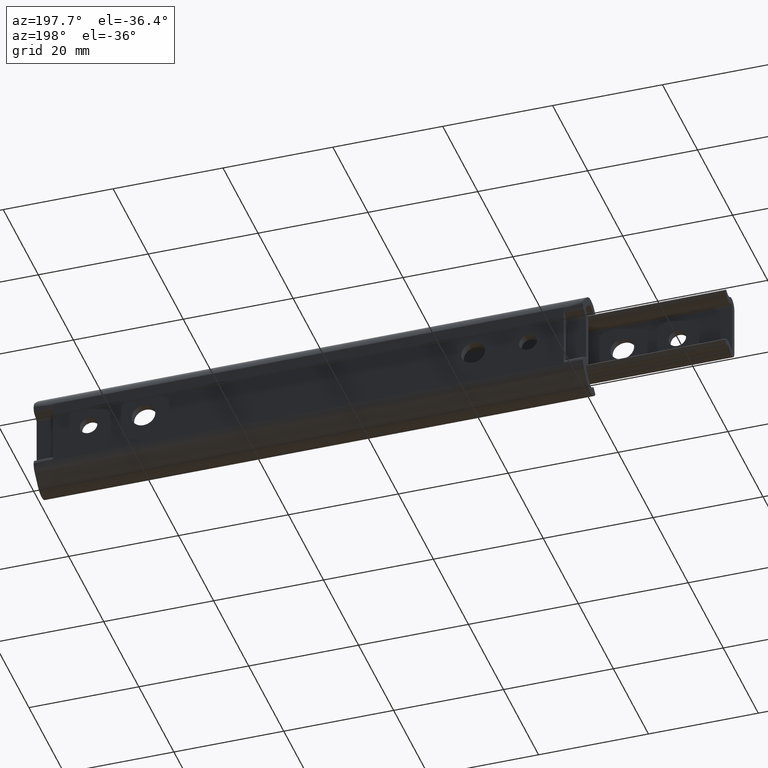
[diagram: clean part render]
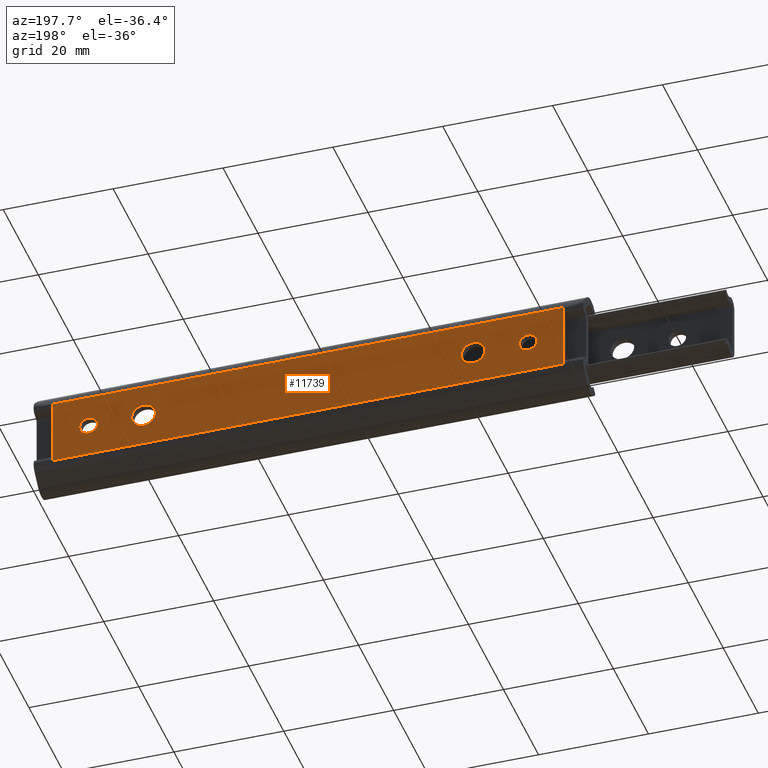
[diagram: same view with one face highlighted and labeled with its STEP entity id]
A machine part, auxiliary view. The second image highlights one B-rep face of the part: STEP entity #11739.
In plain terms, the highlighted face is a freeform B-spline surface patch.
Its self-contained STEP definition (entity closure, byte-faithful):
#8963=CARTESIAN_POINT('',(91.597015677446763,5.204170E-017,-0.097677663717325));
#8964=VERTEX_POINT('',#8963);
#8970=CARTESIAN_POINT('',(90.0,0.0,-1.600000000000000));
#8971=VERTEX_POINT('',#8970);
#8972=CARTESIAN_POINT('',(90.0,0.0,-1.600000000000000));
#8973=CARTESIAN_POINT('',(91.505129706177456,0.0,-1.600000000000001));
#8974=CARTESIAN_POINT('',(91.597015677446763,5.204170E-017,-0.097677663717325));
#8982=(BOUNDED_CURVE()B_SPLINE_CURVE(2,(#8972,#8973,#8974),.UNSPECIFIED.,.F.,.U.)B_SPLINE_CURVE_WITH_KNOTS((3,3),(0.500000000000000,0.739332962142234),.UNSPECIFIED.)CURVE()GEOMETRIC_REPRESENTATION_ITEM()RATIONAL_B_SPLINE_CURVE((1.0,0.719603993400012,0.976072041459451))REPRESENTATION_ITEM(''));
#8983=EDGE_CURVE('',#8971,#8964,#8982,.T.);
#8985=CARTESIAN_POINT('',(88.411184757950608,4.968999E-017,0.188854776565361));
#8986=VERTEX_POINT('',#8985);
#8987=CARTESIAN_POINT('',(88.411184757950608,4.968999E-017,0.188854776565360));
#8988=CARTESIAN_POINT('',(88.399999999999991,0.0,0.094758592569386));
#8989=CARTESIAN_POINT('',(88.399999999999991,0.0,0.0));
#8990=CARTESIAN_POINT('',(88.399999999999991,0.0,-1.600000000000000));
#8991=CARTESIAN_POINT('',(90.0,0.0,-1.600000000000000));
#8999=(BOUNDED_CURVE()B_SPLINE_CURVE(2,(#8987,#8988,#8989,#8990,#8991),.UNSPECIFIED.,.F.,.U.)B_SPLINE_CURVE_WITH_KNOTS((3,2,3),(0.229562473278534,0.250000000000000,0.500000000000000),.UNSPECIFIED.)CURVE()GEOMETRIC_REPRESENTATION_ITEM()RATIONAL_B_SPLINE_CURVE((0.956026753723140,0.976055948055856,1.0,0.707106781186548,1.0))REPRESENTATION_ITEM(''));
#9000=EDGE_CURVE('',#8986,#8971,#8999,.T.);
#9044=CARTESIAN_POINT('',(90.0,0.0,1.600000000000000));
#9045=VERTEX_POINT('',#9044);
#9046=CARTESIAN_POINT('',(90.0,0.0,1.600000000000000));
#9047=CARTESIAN_POINT('',(88.578920760485602,0.0,1.600000000000000));
#9048=CARTESIAN_POINT('',(88.411184757950608,4.968999E-017,0.188854776565360));
#9056=(BOUNDED_CURVE()B_SPLINE_CURVE(2,(#9046,#9047,#9048),.UNSPECIFIED.,.F.,.U.)B_SPLINE_CURVE_WITH_KNOTS((3,3),(0.0,0.229562473278534),.UNSPECIFIED.)CURVE()GEOMETRIC_REPRESENTATION_ITEM()RATIONAL_B_SPLINE_CURVE((1.0,0.731050833130692,0.956026753723140))REPRESENTATION_ITEM(''));
#9057=EDGE_CURVE('',#9045,#8986,#9056,.T.);
#9059=CARTESIAN_POINT('',(91.597015677446763,5.204170E-017,-0.097677663717325));
#9060=CARTESIAN_POINT('',(91.600000000000009,0.0,-0.048884421740591));
#9061=CARTESIAN_POINT('',(91.599999999999994,0.0,0.0));
#9062=CARTESIAN_POINT('',(91.599999999999980,0.0,1.600000000000000));
#9063=CARTESIAN_POINT('',(90.0,0.0,1.600000000000000));
#9071=(BOUNDED_CURVE()B_SPLINE_CURVE(2,(#9059,#9060,#9061,#9062,#9063),.UNSPECIFIED.,.F.,.U.)B_SPLINE_CURVE_WITH_KNOTS((3,2,3),(0.739332962142233,0.750000000000000,1.0),.UNSPECIFIED.)CURVE()GEOMETRIC_REPRESENTATION_ITEM()RATIONAL_B_SPLINE_CURVE((0.976072041459449,0.987502787786534,1.0,0.707106781186548,1.0))REPRESENTATION_ITEM(''));
#9072=EDGE_CURVE('',#8964,#9045,#9071,.T.);
#9149=CARTESIAN_POINT('',(82.145989816594152,5.204170E-017,-0.131254360210068));
#9150=VERTEX_POINT('',#9149);
#9156=CARTESIAN_POINT('',(80.0,0.0,-2.150000000000000));
#9157=VERTEX_POINT('',#9156);
#9158=CARTESIAN_POINT('',(80.0,0.0,-2.150000000000000));
#9159=CARTESIAN_POINT('',(82.022518043450447,0.0,-2.150000000000001));
#9160=CARTESIAN_POINT('',(82.145989816594152,5.204170E-017,-0.131254360210068));
#9168=(BOUNDED_CURVE()B_SPLINE_CURVE(2,(#9158,#9159,#9160),.UNSPECIFIED.,.F.,.U.)B_SPLINE_CURVE_WITH_KNOTS((3,3),(0.500000000000000,0.739332962208179),.UNSPECIFIED.)CURVE()GEOMETRIC_REPRESENTATION_ITEM()RATIONAL_B_SPLINE_CURVE((1.0,0.719603993322753,0.976072041600784))REPRESENTATION_ITEM(''));
#9169=EDGE_CURVE('',#9157,#9150,#9168,.T.);
#9171=CARTESIAN_POINT('',(77.865029518328441,4.968999E-017,0.253773604598790));
#9172=VERTEX_POINT('',#9171);
#9173=CARTESIAN_POINT('',(77.865029518328441,4.968999E-017,0.253773604598790));
#9174=CARTESIAN_POINT('',(77.850000000000009,0.0,0.127331857339283));
#9175=CARTESIAN_POINT('',(77.850000000000009,0.0,0.0));
#9176=CARTESIAN_POINT('',(77.850000000000023,0.0,-2.150000000000000));
#9177=CARTESIAN_POINT('',(80.0,0.0,-2.150000000000000));
#9185=(BOUNDED_CURVE()B_SPLINE_CURVE(2,(#9173,#9174,#9175,#9176,#9177),.UNSPECIFIED.,.F.,.U.)B_SPLINE_CURVE_WITH_KNOTS((3,2,3),(0.229562473501909,0.250000000000000,0.500000000000000),.UNSPECIFIED.)CURVE()GEOMETRIC_REPRESENTATION_ITEM()RATIONAL_B_SPLINE_CURVE((0.956026754160963,0.976055948317555,1.0,0.707106781186547,1.0))REPRESENTATION_ITEM(''));
#9186=EDGE_CURVE('',#9172,#9157,#9185,.T.);
#9230=CARTESIAN_POINT('',(80.0,0.0,2.150000000000000));
#9231=VERTEX_POINT('',#9230);
#9232=CARTESIAN_POINT('',(80.0,0.0,2.150000000000000));
#9233=CARTESIAN_POINT('',(78.090424769360865,0.0,2.150000000000000));
#9234=CARTESIAN_POINT('',(77.865029518328441,4.968999E-017,0.253773604598790));
#9242=(BOUNDED_CURVE()B_SPLINE_CURVE(2,(#9232,#9233,#9234),.UNSPECIFIED.,.F.,.U.)B_SPLINE_CURVE_WITH_KNOTS((3,3),(0.0,0.229562473501909),.UNSPECIFIED.)CURVE()GEOMETRIC_REPRESENTATION_ITEM()RATIONAL_B_SPLINE_CURVE((1.0,0.731050832868992,0.956026754160963))REPRESENTATION_ITEM(''));
#9243=EDGE_CURVE('',#9231,#9172,#9242,.T.);
#9245=CARTESIAN_POINT('',(82.145989816594152,5.204170E-017,-0.131254360210068));
#9246=CARTESIAN_POINT('',(82.150000000000006,0.0,-0.065688441302681));
#9247=CARTESIAN_POINT('',(82.150000000000006,0.0,0.0));
#9248=CARTESIAN_POINT('',(82.150000000000020,0.0,2.150000000000000));
#9249=CARTESIAN_POINT('',(80.0,0.0,2.150000000000000));
#9257=(BOUNDED_CURVE()B_SPLINE_CURVE(2,(#9245,#9246,#9247,#9248,#9249),.UNSPECIFIED.,.F.,.U.)B_SPLINE_CURVE_WITH_KNOTS((3,2,3),(0.739332962208178,0.750000000000000,1.0),.UNSPECIFIED.)CURVE()GEOMETRIC_REPRESENTATION_ITEM()RATIONAL_B_SPLINE_CURVE((0.976072041600783,0.987502787863794,1.0,0.707106781186547,1.0))REPRESENTATION_ITEM(''));
#9258=EDGE_CURVE('',#9150,#9231,#9257,.T.);
#9335=CARTESIAN_POINT('',(22.145989816594160,5.204170E-017,-0.131254360210069));
#9336=VERTEX_POINT('',#9335);
#9342=CARTESIAN_POINT('',(20.0,0.0,-2.150000000000000));
#9343=VERTEX_POINT('',#9342);
#9344=CARTESIAN_POINT('',(20.0,0.0,-2.150000000000000));
#9345=CARTESIAN_POINT('',(22.022518043450440,0.0,-2.150000000000001));
#9346=CARTESIAN_POINT('',(22.145989816594160,5.204170E-017,-0.131254360210068));
#9354=(BOUNDED_CURVE()B_SPLINE_CURVE(2,(#9344,#9345,#9346),.UNSPECIFIED.,.F.,.U.)B_SPLINE_CURVE_WITH_KNOTS((3,3),(0.500000000000000,0.739332962208179),.UNSPECIFIED.)CURVE()GEOMETRIC_REPRESENTATION_ITEM()RATIONAL_B_SPLINE_CURVE((1.0,0.719603993322753,0.976072041600784))REPRESENTATION_ITEM(''));
#9355=EDGE_CURVE('',#9343,#9336,#9354,.T.);
#9357=CARTESIAN_POINT('',(17.865029518328431,4.968999E-017,0.253773604598790));
#9358=VERTEX_POINT('',#9357);
#9359=CARTESIAN_POINT('',(17.865029518328434,4.968999E-017,0.253773604598790));
#9360=CARTESIAN_POINT('',(17.850000000000005,0.0,0.127331857339284));
#9361=CARTESIAN_POINT('',(17.850000000000001,0.0,0.0));
#9362=CARTESIAN_POINT('',(17.849999999999998,0.0,-2.150000000000000));
#9363=CARTESIAN_POINT('',(20.0,0.0,-2.150000000000000));
#9371=(BOUNDED_CURVE()B_SPLINE_CURVE(2,(#9359,#9360,#9361,#9362,#9363),.UNSPECIFIED.,.F.,.U.)B_SPLINE_CURVE_WITH_KNOTS((3,2,3),(0.229562473501909,0.250000000000000,0.500000000000000),.UNSPECIFIED.)CURVE()GEOMETRIC_REPRESENTATION_ITEM()RATIONAL_B_SPLINE_CURVE((0.956026754160963,0.976055948317555,1.0,0.707106781186547,1.0))REPRESENTATION_ITEM(''));
#9372=EDGE_CURVE('',#9358,#9343,#9371,.T.);
#9416=CARTESIAN_POINT('',(20.0,0.0,2.150000000000000));
#9417=VERTEX_POINT('',#9416);
#9418=CARTESIAN_POINT('',(20.0,0.0,2.150000000000000));
#9419=CARTESIAN_POINT('',(18.090424769360855,0.0,2.150000000000000));
#9420=CARTESIAN_POINT('',(17.865029518328431,4.968999E-017,0.253773604598790));
#9428=(BOUNDED_CURVE()B_SPLINE_CURVE(2,(#9418,#9419,#9420),.UNSPECIFIED.,.F.,.U.)B_SPLINE_CURVE_WITH_KNOTS((3,3),(0.0,0.229562473501909),.UNSPECIFIED.)CURVE()GEOMETRIC_REPRESENTATION_ITEM()RATIONAL_B_SPLINE_CURVE((1.0,0.731050832868992,0.956026754160963))REPRESENTATION_ITEM(''));
#9429=EDGE_CURVE('',#9417,#9358,#9428,.T.);
#9431=CARTESIAN_POINT('',(22.145989816594156,5.204170E-017,-0.131254360210068));
#9432=CARTESIAN_POINT('',(22.149999999999999,0.0,-0.065688441302681));
#9433=CARTESIAN_POINT('',(22.149999999999999,0.0,0.0));
#9434=CARTESIAN_POINT('',(22.150000000000006,0.0,2.150000000000000));
#9435=CARTESIAN_POINT('',(20.0,0.0,2.150000000000000));
#9443=(BOUNDED_CURVE()B_SPLINE_CURVE(2,(#9431,#9432,#9433,#9434,#9435),.UNSPECIFIED.,.F.,.U.)B_SPLINE_CURVE_WITH_KNOTS((3,2,3),(0.739332962208178,0.750000000000000,1.0),.UNSPECIFIED.)CURVE()GEOMETRIC_REPRESENTATION_ITEM()RATIONAL_B_SPLINE_CURVE((0.976072041600783,0.987502787863794,1.0,0.707106781186547,1.0))REPRESENTATION_ITEM(''));
#9444=EDGE_CURVE('',#9336,#9417,#9443,.T.);
#9521=CARTESIAN_POINT('',(11.597015677446761,5.204170E-017,-0.097677663717326));
#9522=VERTEX_POINT('',#9521);
#9528=CARTESIAN_POINT('',(10.0,0.0,-1.600000000000000));
#9529=VERTEX_POINT('',#9528);
#9530=CARTESIAN_POINT('',(10.0,0.0,-1.600000000000000));
#9531=CARTESIAN_POINT('',(11.505129706177497,0.0,-1.600000000000001));
#9532=CARTESIAN_POINT('',(11.597015677446761,5.204170E-017,-0.097677663717326));
#9540=(BOUNDED_CURVE()B_SPLINE_CURVE(2,(#9530,#9531,#9532),.UNSPECIFIED.,.F.,.U.)B_SPLINE_CURVE_WITH_KNOTS((3,3),(0.500000000000000,0.739332962142234),.UNSPECIFIED.)CURVE()GEOMETRIC_REPRESENTATION_ITEM()RATIONAL_B_SPLINE_CURVE((1.0,0.719603993400012,0.976072041459451))REPRESENTATION_ITEM(''));
#9541=EDGE_CURVE('',#9529,#9522,#9540,.T.);
#9543=CARTESIAN_POINT('',(8.411184757950615,4.968999E-017,0.188854776565361));
#9544=VERTEX_POINT('',#9543);
#9545=CARTESIAN_POINT('',(8.411184757950615,4.968999E-017,0.188854776565361));
#9546=CARTESIAN_POINT('',(8.400000000000000,0.0,0.094758592569386));
#9547=CARTESIAN_POINT('',(8.400000000000000,0.0,0.0));
#9548=CARTESIAN_POINT('',(8.400000000000000,0.0,-1.600000000000000));
#9549=CARTESIAN_POINT('',(10.0,0.0,-1.600000000000000));
#9557=(BOUNDED_CURVE()B_SPLINE_CURVE(2,(#9545,#9546,#9547,#9548,#9549),.UNSPECIFIED.,.F.,.U.)B_SPLINE_CURVE_WITH_KNOTS((3,2,3),(0.229562473278534,0.250000000000000,0.500000000000000),.UNSPECIFIED.)CURVE()GEOMETRIC_REPRESENTATION_ITEM()RATIONAL_B_SPLINE_CURVE((0.956026753723140,0.976055948055856,1.0,0.707106781186548,1.0))REPRESENTATION_ITEM(''));
#9558=EDGE_CURVE('',#9544,#9529,#9557,.T.);
#9602=CARTESIAN_POINT('',(10.0,0.0,1.600000000000000));
#9603=VERTEX_POINT('',#9602);
#9604=CARTESIAN_POINT('',(10.0,0.0,1.600000000000000));
#9605=CARTESIAN_POINT('',(8.578920760485611,0.0,1.599999999999999));
#9606=CARTESIAN_POINT('',(8.411184757950615,4.968999E-017,0.188854776565361));
#9614=(BOUNDED_CURVE()B_SPLINE_CURVE(2,(#9604,#9605,#9606),.UNSPECIFIED.,.F.,.U.)B_SPLINE_CURVE_WITH_KNOTS((3,3),(0.0,0.229562473278534),.UNSPECIFIED.)CURVE()GEOMETRIC_REPRESENTATION_ITEM()RATIONAL_B_SPLINE_CURVE((1.0,0.731050833130692,0.956026753723140))REPRESENTATION_ITEM(''));
#9615=EDGE_CURVE('',#9603,#9544,#9614,.T.);
#9617=CARTESIAN_POINT('',(11.597015677446755,5.204170E-017,-0.097677663717326));
#9618=CARTESIAN_POINT('',(11.600000000000005,0.0,-0.048884421740591));
#9619=CARTESIAN_POINT('',(11.600000000000000,0.0,0.0));
#9620=CARTESIAN_POINT('',(11.600000000000001,0.0,1.600000000000000));
#9621=CARTESIAN_POINT('',(10.0,0.0,1.600000000000000));
#9629=(BOUNDED_CURVE()B_SPLINE_CURVE(2,(#9617,#9618,#9619,#9620,#9621),.UNSPECIFIED.,.F.,.U.)B_SPLINE_CURVE_WITH_KNOTS((3,2,3),(0.739332962142233,0.750000000000000,1.0),.UNSPECIFIED.)CURVE()GEOMETRIC_REPRESENTATION_ITEM()RATIONAL_B_SPLINE_CURVE((0.976072041459449,0.987502787786534,1.0,0.707106781186548,1.0))REPRESENTATION_ITEM(''));
#9630=EDGE_CURVE('',#9522,#9603,#9629,.T.);
#11380=CARTESIAN_POINT('',(3.499999999999950,7.958044E-014,-6.081989000000000));
#11381=VERTEX_POINT('',#11380);
#11382=CARTESIAN_POINT('',(3.499999999999950,-9.085614E-014,6.081989000000000));
#11383=VERTEX_POINT('',#11382);
#11384=CARTESIAN_POINT('',(3.499999999999950,7.958044E-014,-6.081989000000000));
#11385=CARTESIAN_POINT('',(3.499999999999950,-9.085614E-014,6.081989000000000));
#11386=QUASI_UNIFORM_CURVE('',1,(#11384,#11385),.UNSPECIFIED.,.F.,.U.);
#11387=EDGE_CURVE('',#11381,#11383,#11386,.T.);
#11665=CARTESIAN_POINT('',(96.500000000000000,8.521829E-014,-6.081989000000000));
#11666=VERTEX_POINT('',#11665);
#11667=CARTESIAN_POINT('',(96.500000000000000,8.521829E-014,-6.081989000000000));
#11668=CARTESIAN_POINT('',(3.499999999999950,7.958044E-014,-6.081989000000000));
#11669=QUASI_UNIFORM_CURVE('',1,(#11667,#11668),.UNSPECIFIED.,.F.,.U.);
#11670=EDGE_CURVE('',#11666,#11381,#11669,.T.);
#11694=CARTESIAN_POINT('',(-1.145349819748008,8.526513E-014,-6.689579519878855));
#11695=CARTESIAN_POINT('',(-1.145349819748008,8.526513E-014,6.689579084861102));
#11696=CARTESIAN_POINT('',(101.145352314202400,8.526513E-014,-6.689579519878855));
#11697=CARTESIAN_POINT('',(101.145352314202400,8.526513E-014,6.689579084861102));
#11698=B_SPLINE_SURFACE_WITH_KNOTS('',1,1,((#11694,#11696),(#11695,#11697)),.UNSPECIFIED.,.F.,.F.,.U.,(2,2),(2,2),(0.0,13.379158604739960),(0.0,102.290702133950400),.UNSPECIFIED.);
#11699=CARTESIAN_POINT('',(96.500000000000000,-9.085614E-014,6.081988999999800));
#11700=VERTEX_POINT('',#11699);
#11701=CARTESIAN_POINT('',(96.500000000000000,-9.085614E-014,6.081988999999800));
#11702=CARTESIAN_POINT('',(3.499999999999950,-9.085614E-014,6.081989000000000));
#11703=QUASI_UNIFORM_CURVE('',1,(#11701,#11702),.UNSPECIFIED.,.F.,.U.);
#11704=EDGE_CURVE('',#11700,#11383,#11703,.T.);
#11705=ORIENTED_EDGE('',*,*,#11704,.F.);
#11706=CARTESIAN_POINT('',(96.500000000000000,-9.085614E-014,6.081988999999800));
#11707=CARTESIAN_POINT('',(96.500000000000000,8.521829E-014,-6.081989000000000));
#11708=QUASI_UNIFORM_CURVE('',1,(#11706,#11707),.UNSPECIFIED.,.F.,.U.);
#11709=EDGE_CURVE('',#11700,#11666,#11708,.T.);
#11710=ORIENTED_EDGE('',*,*,#11709,.T.);
#11711=ORIENTED_EDGE('',*,*,#11670,.T.);
#11712=ORIENTED_EDGE('',*,*,#11387,.T.);
#11713=EDGE_LOOP('',(#11705,#11710,#11711,#11712));
#11714=FACE_OUTER_BOUND('',#11713,.T.);
#11715=ORIENTED_EDGE('',*,*,#9541,.T.);
#11716=ORIENTED_EDGE('',*,*,#9630,.T.);
#11717=ORIENTED_EDGE('',*,*,#9615,.T.);
#11718=ORIENTED_EDGE('',*,*,#9558,.T.);
#11719=EDGE_LOOP('',(#11715,#11716,#11717,#11718));
#11720=FACE_BOUND('',#11719,.T.);
#11721=ORIENTED_EDGE('',*,*,#9355,.T.);
#11722=ORIENTED_EDGE('',*,*,#9444,.T.);
#11723=ORIENTED_EDGE('',*,*,#9429,.T.);
#11724=ORIENTED_EDGE('',*,*,#9372,.T.);
#11725=EDGE_LOOP('',(#11721,#11722,#11723,#11724));
#11726=FACE_BOUND('',#11725,.T.);
#11727=ORIENTED_EDGE('',*,*,#9169,.T.);
#11728=ORIENTED_EDGE('',*,*,#9258,.T.);
#11729=ORIENTED_EDGE('',*,*,#9243,.T.);
#11730=ORIENTED_EDGE('',*,*,#9186,.T.);
#11731=EDGE_LOOP('',(#11727,#11728,#11729,#11730));
#11732=FACE_BOUND('',#11731,.T.);
#11733=ORIENTED_EDGE('',*,*,#8983,.T.);
#11734=ORIENTED_EDGE('',*,*,#9072,.T.);
#11735=ORIENTED_EDGE('',*,*,#9057,.T.);
#11736=ORIENTED_EDGE('',*,*,#9000,.T.);
#11737=EDGE_LOOP('',(#11733,#11734,#11735,#11736));
#11738=FACE_BOUND('',#11737,.T.);
#11739=ADVANCED_FACE('',(#11714,#11720,#11726,#11732,#11738),#11698,.T.);